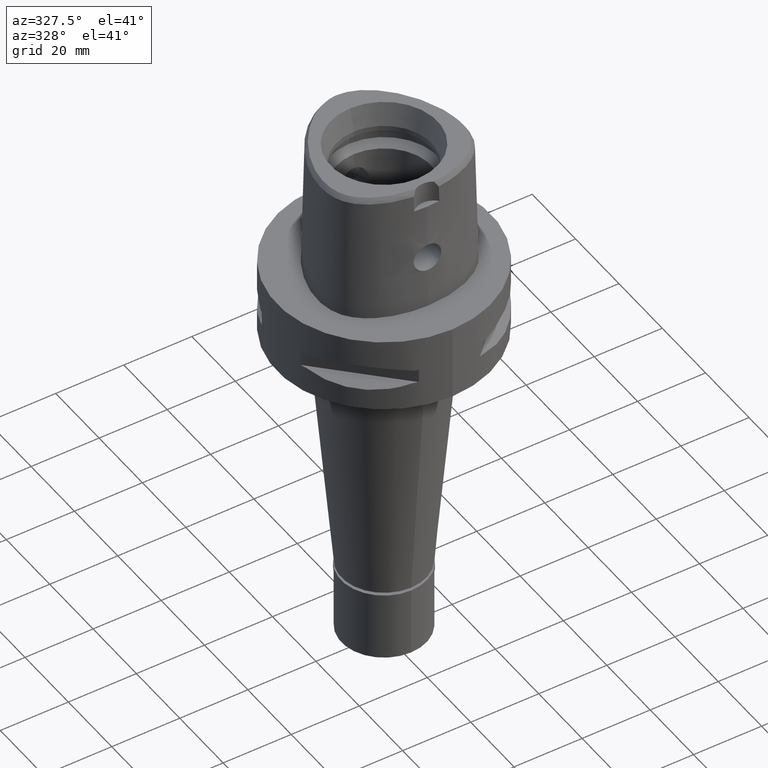
[diagram: clean part render]
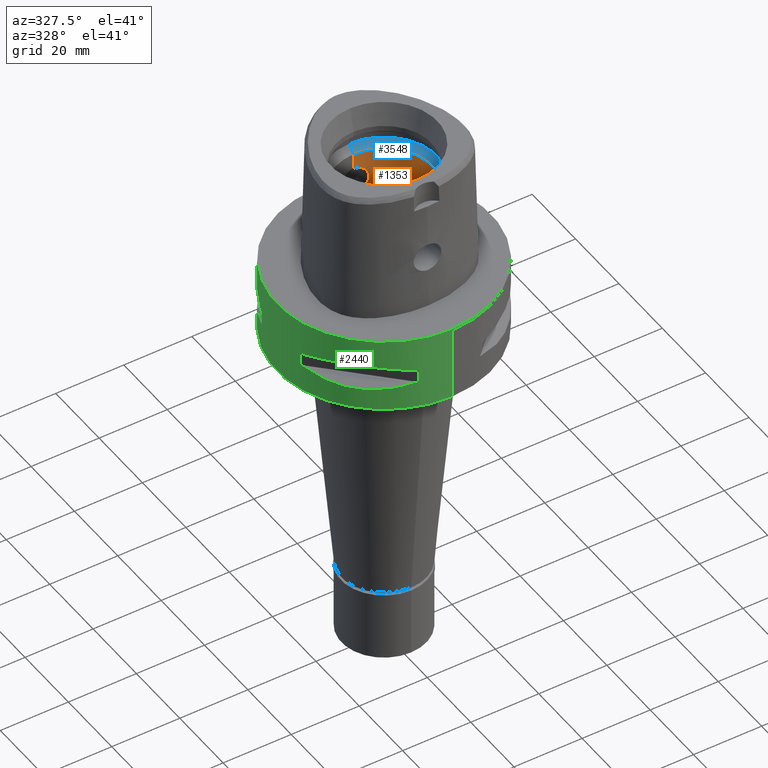
[diagram: same view with three faces highlighted in distinct colors, each labeled with its STEP entity id]
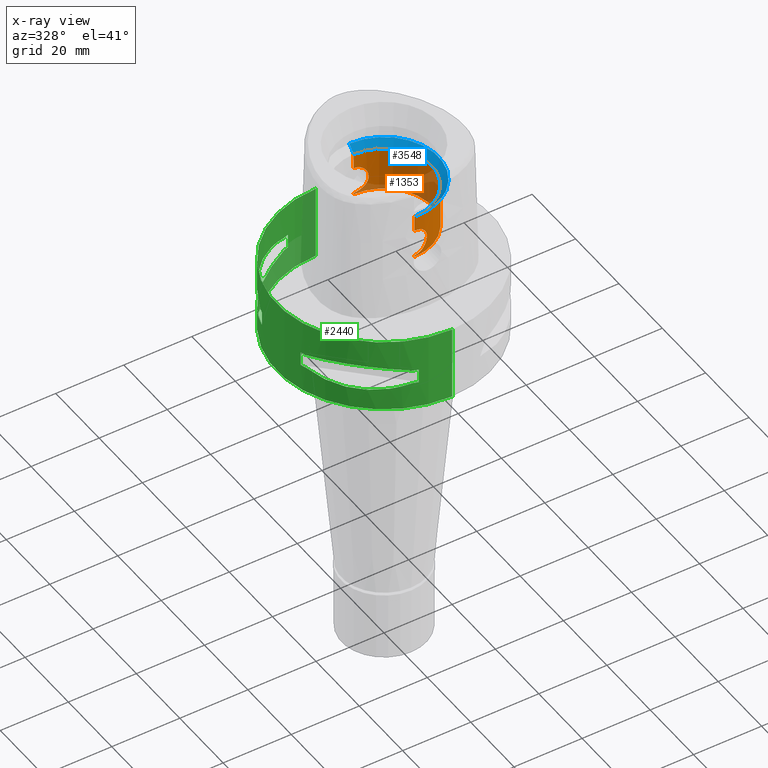
[diagram: x-ray of the same camera — body ghosted, the three highlighted faces saturated]
A machine part, auxiliary view with three faces highlighted in distinct colors.
The next image is the same camera in x-ray (body ghosted, the three faces saturated) — at least one of them is partly hidden behind the body in this view.
Their STEP definitions:

[orange] entity #1353 — the highlighted cylindrical surface (partial cylindrical patch) has radius 14 mm, axis along (0, 0, -1).
#8 = CARTESIAN_POINT ( 'NONE',  ( 3.731947233717674006, 13.49355243647113056, 13.92674594027223378 ) ) ;
#29 = CARTESIAN_POINT ( 'NONE',  ( 3.410721872006920119, 13.57817107780544674, 17.68404181477652770 ) ) ;
#54 = CARTESIAN_POINT ( 'NONE',  ( 3.770295828582672204, 13.48287449147562000, 16.97915267912457082 ) ) ;
#76 = CARTESIAN_POINT ( 'NONE',  ( 3.020660455888391382, 13.67036005593459080, 18.19808468490817432 ) ) ;
#96 = EDGE_CURVE ( 'NONE', #4403, #3761, #3030, .T. ) ;
#129 = VECTOR ( 'NONE', #3969, 1000.000000000000000 ) ;
#149 = CARTESIAN_POINT ( 'NONE',  ( 0.0000000000000000000, -14.00000000000000000, 19.55000000000000071 ) ) ;
#175 = CARTESIAN_POINT ( 'NONE',  ( 3.922079205926539913, -13.43983130148735583, 14.48117699415297821 ) ) ;
#200 = CARTESIAN_POINT ( 'NONE',  ( 3.300146341868730016, -13.60553517925856859, 17.84781835519089199 ) ) ;
#205 = DIRECTION ( 'NONE',  ( 0.0000000000000000000, 0.0000000000000000000, 1.000000000000000000 ) ) ;
#222 = CARTESIAN_POINT ( 'NONE',  ( 0.0000000000000000000, 0.0000000000000000000, 24.19999999999999929 ) ) ;
#230 = CARTESIAN_POINT ( 'NONE',  ( 3.612125191146808856, -13.52615234760308560, 17.33290907846121343 ) ) ;
#253 = CARTESIAN_POINT ( 'NONE',  ( 1.935032715380933022, -13.86568800699301107, 19.05844582699477030 ) ) ;
#265 = CARTESIAN_POINT ( 'NONE',  ( 1.017647129617076596, 13.96323008892529138, 11.57763991488630317 ) ) ;
#277 = CARTESIAN_POINT ( 'NONE',  ( 2.749433056070069270, -13.72738395001101530, 18.47422555712543257 ) ) ;
#290 = VECTOR ( 'NONE', #4975, 1000.000000000000000 ) ;
#343 = CARTESIAN_POINT ( 'NONE',  ( 0.8886602406399118914, 13.97198482965736765, 11.54653314444634127 ) ) ;
#367 = CARTESIAN_POINT ( 'NONE',  ( 4.027172463334768970, 13.40874935841138615, 16.00310739066830834 ) ) ;
#382 = CARTESIAN_POINT ( 'NONE',  ( 3.329855789848241709, -13.59830196918598055, 13.19313464223616705 ) ) ;
#395 = CARTESIAN_POINT ( 'NONE',  ( 4.049894426080578924, 13.40142315477315194, 15.74850829857959944 ) ) ;
#405 = CARTESIAN_POINT ( 'NONE',  ( 2.286401869814578713, -13.81203602588922230, 12.15707754366347437 ) ) ;
#417 = CARTESIAN_POINT ( 'NONE',  ( 3.524199374553697250, 13.54926875960418542, 17.49682897105229884 ) ) ;
#440 = CARTESIAN_POINT ( 'NONE',  ( 2.407026742850356893, 13.79179092516307925, 12.24014823345906855 ) ) ;
#455 = VECTOR ( 'NONE', #205, 1000.000000000000000 ) ;
#468 = CARTESIAN_POINT ( 'NONE',  ( 3.344202712455531135, 13.59470072211582625, 13.21548413973970248 ) ) ;
#484 = CARTESIAN_POINT ( 'NONE',  ( 1.499090398665863022, -13.91942988264788639, 19.26238249073140807 ) ) ;
#491 = CARTESIAN_POINT ( 'NONE',  ( 2.993275682249345149, 13.67636296181817990, 18.22847972535759808 ) ) ;
#508 = CARTESIAN_POINT ( 'NONE',  ( 1.419263858855973170, -13.92782887280988824, 19.29344666030895894 ) ) ;
#567 = CARTESIAN_POINT ( 'NONE',  ( 3.681917144189346125, -13.50730066061704093, 17.18730806971668201 ) ) ;
#572 = CARTESIAN_POINT ( 'NONE',  ( 1.571457089749292102, 13.91140721976953110, 19.23272879698367532 ) ) ;
#584 = EDGE_CURVE ( 'NONE', #2545, #985, #3765, .T. ) ;
#590 = CARTESIAN_POINT ( 'NONE',  ( 2.794219043454203799, -13.71831254960125079, 18.43176999258679416 ) ) ;
#595 = CARTESIAN_POINT ( 'NONE',  ( 2.256421358940177591, 13.81696909000757323, 18.86319363591200116 ) ) ;
#616 = CARTESIAN_POINT ( 'NONE',  ( 3.410743495979883466, -13.57816568318279060, 13.31599196301607613 ) ) ;
#644 = CARTESIAN_POINT ( 'NONE',  ( 3.518056051390934691, -13.55098508630389631, 17.51091968138044663 ) ) ;
#672 = CARTESIAN_POINT ( 'NONE',  ( 3.737887346441685743, -13.49190726130687601, 17.05908841074321813 ) ) ;
#688 = ORIENTED_EDGE ( 'NONE', *, *, #3404, .T. ) ;
#742 = ORIENTED_EDGE ( 'NONE', *, *, #584, .T. ) ;
#750 = CARTESIAN_POINT ( 'NONE',  ( 2.256430671647058350, -13.81696743697042251, 12.13681261213642415 ) ) ;
#758 = CARTESIAN_POINT ( 'NONE',  ( 3.737862436380069209, 13.49191471466330761, 13.94085186771693863 ) ) ;
#769 = CARTESIAN_POINT ( 'NONE',  ( 2.993295809006948360, -13.67635858830081474, 12.77154234738791239 ) ) ;
#781 = CARTESIAN_POINT ( 'NONE',  ( 3.641236061920076317, 13.51834413263972756, 13.72574250707584476 ) ) ;
#796 = CARTESIAN_POINT ( 'NONE',  ( 1.029195579378260561, -13.97152789805618411, 11.54372935797607624 ) ) ;
#810 = CARTESIAN_POINT ( 'NONE',  ( 3.740349717817780917, 13.49122537259350985, 13.94682241178655246 ) ) ;
#812 = LINE ( 'NONE', #854, #3539 ) ;
#830 = CARTESIAN_POINT ( 'NONE',  ( 3.386213530933807281, 13.58429339872313513, 17.72172867397880580 ) ) ;
#851 = CARTESIAN_POINT ( 'NONE',  ( 2.619673022588239863, 13.75271276002085052, 12.41039726434475376 ) ) ;
#852 = LINE ( 'NONE', #2453, #129 ) ;
#854 = CARTESIAN_POINT ( 'NONE',  ( 0.0000000000000000000, 14.00000000000000000, 19.55000000000000071 ) ) ;
#905 = CARTESIAN_POINT ( 'NONE',  ( 1.643402327193238976, -13.90359116571691622, 19.20357680869639339 ) ) ;
#909 = CARTESIAN_POINT ( 'NONE',  ( 0.0000000000000000000, -14.00000000000000000, 11.00000000000000000 ) ) ;
#937 = CARTESIAN_POINT ( 'NONE',  ( 0.4996109249560286014, 13.99999999999999645, 19.54999999999999716 ) ) ;
#957 = CARTESIAN_POINT ( 'NONE',  ( 2.987578035450121572, -13.67819521536447702, 18.24080360132781919 ) ) ;
#966 = CARTESIAN_POINT ( 'NONE',  ( 2.268763823219308584, 13.81494635577724672, 18.85488801677172432 ) ) ;
#985 = VERTEX_POINT ( 'NONE', #909 ) ;
#989 = CARTESIAN_POINT ( 'NONE',  ( 3.750535583141733742, -13.48837563529462713, 13.97158931176320351 ) ) ;
#994 = CARTESIAN_POINT ( 'NONE',  ( 3.098494804711187101, 13.65307097563988314, 18.10922060623350305 ) ) ;
#1010 = CARTESIAN_POINT ( 'NONE',  ( 3.524216152961116677, -13.54926445640474597, 13.50320070279009421 ) ) ;
#1040 = CARTESIAN_POINT ( 'NONE',  ( 3.381275431629196859, -13.58552310375113947, 13.27076317275104600 ) ) ;
#1071 = CARTESIAN_POINT ( 'NONE',  ( 2.225307842479133935, -13.82200032480936791, 18.88386244170206041 ) ) ;
#1085 = CARTESIAN_POINT ( 'NONE',  ( 1.419273682515728385, 13.92782810608996336, 11.70655701251833847 ) ) ;
#1121 = CARTESIAN_POINT ( 'NONE',  ( 1.559056483625618883, -13.91280418779705386, 11.76206681924250752 ) ) ;
#1150 = CARTESIAN_POINT ( 'NONE',  ( 2.356179768647385320, -13.80026442332236236, 12.20580376818401902 ) ) ;
#1162 = CARTESIAN_POINT ( 'NONE',  ( 3.321820542263259846, 13.60022405019305403, 13.18290148945368401 ) ) ;
#1183 = CARTESIAN_POINT ( 'NONE',  ( 2.206585077461908906, 13.82500562468822203, 12.10388135705122892 ) ) ;
#1207 = CARTESIAN_POINT ( 'NONE',  ( 3.557088666496132312, 13.54068383475939719, 17.43752651015343602 ) ) ;
#1210 = B_SPLINE_CURVE_WITH_KNOTS ( 'NONE', 3,
 ( #2729, #2255, #2674, #343, #265, #3447, #3063, #1085, #4245, #3867, #5045, #1503, #3088, #4368, #3234, #2452, #2772, #4408, #1183, #1555, #3990, #1603, #3160, #440, #1582, #851, #4030, #3182, #2036, #3139, #4799, #4777, #2406, #1235, #4707, #2384, #1162, #468, #1252, #2063, #5090, #3212, #2750, #4317, #2825, #781, #3576, #2012, #3968, #8, #758, #810, #3622, #2356, #3939, #4726, #395, #367, #2845, #4341, #1964, #1649, #3554, #54, #2799, #4008, #1990, #5117, #4751, #1207, #417, #4389, #3596, #29, #1628, #830, #2424, #2564, #3313, #4517, #2587, #994, #76, #491, #1277, #4489, #3255, #2949, #2115, #2167, #4159, #2926, #4930, #966, #3363, #595, #4138, #2483, #1701, #1359, #1310, #2090, #4056, #4902, #572, #3648, #1673, #937, #3752 ),
 .UNSPECIFIED., .F., .F.,
 ( 4, 2, 2, 1, 1, 2, 2, 2, 2, 1, 1, 1, 2, 2, 2, 2, 1, 2, 2, 2, 2, 1, 1, 1, 2, 2, 2, 2, 1, 1, 2, 2, 2, 2, 2, 2, 1, 1, 1, 2, 2, 2, 2, 1, 1, 1, 2, 2, 2, 2, 2, 2, 2, 2, 1, 1, 1, 2, 2, 2, 2, 1, 2, 2, 4 ),
 ( 0.0000000000000000000, 0.06250000000002796374, 0.09375000000004200806, 0.1093750000000490857, 0.1171875000000525829, 0.1210937500000543177, 0.1250000000000560385, 0.1562500000000701383, 0.1718750000000773548, 0.1796875000000809630, 0.1835937500000826839, 0.1855468750000834610, 0.1865234375000837386, 0.1875000000000840161, 0.2187500000000996425, 0.2343750000001074418, 0.2421875000001113554, 0.2460937500001133815, 0.2500000000001154077, 0.2812500000001315059, 0.2968750000001393885, 0.3046875000001431633, 0.3085937500001449951, 0.3105468750001457168, 0.3115234375001458278, 0.3125000000001459388, 0.3437500000001469380, 0.3593750000001472156, 0.3671875000001475486, 0.3710937500001474931, 0.3730468750001477152, 0.3750000000001478817, 0.4375000000001576517, 0.5000000000001674216, 0.5625000000001771916, 0.5937500000001820766, 0.6093750000001841860, 0.6171875000001851852, 0.6210937500001852962, 0.6230468750001854072, 0.6250000000001855183, 0.6562500000001864064, 0.6718750000001868505, 0.6796875000001872946, 0.6835937500001872946, 0.6855468750001872946, 0.6865234375001869616, 0.6875000000001866285, 0.7187500000001761924, 0.7343750000001709743, 0.7421875000001680878, 0.7500000000001652012, 0.7812500000001552092, 0.7968750000001503242, 0.8046875000001475486, 0.8085937500001462164, 0.8105468750001455502, 0.8115234375001447731, 0.8125000000001441069, 0.8437500000001201261, 0.8593750000001081357, 0.8671875000001020295, 0.8710937500000988098, 0.8750000000000954792, 1.000000000000000000 ),
 .UNSPECIFIED. ) ;
#1235 = CARTESIAN_POINT ( 'NONE',  ( 3.217025597028648320, 13.62560769355123647, 13.03875506194515488 ) ) ;
#1252 = CARTESIAN_POINT ( 'NONE',  ( 3.354680329649776471, 13.59210945294472062, 13.23093247323635957 ) ) ;
#1268 = CARTESIAN_POINT ( 'NONE',  ( 1.017639181934914649, -13.96323047955135976, 19.42236212083248503 ) ) ;
#1277 = CARTESIAN_POINT ( 'NONE',  ( 2.935444872016017115, 13.68884853182273176, 18.29060286049227102 ) ) ;
#1306 = ORIENTED_EDGE ( 'NONE', *, *, #96, .F. ) ;
#1310 = CARTESIAN_POINT ( 'NONE',  ( 1.773859858346373830, 13.88717310935093607, 19.14143527713201465 ) ) ;
#1353 = ADVANCED_FACE ( 'NONE', ( #2955 ), #4524, .F. ) ;
#1359 = CARTESIAN_POINT ( 'NONE',  ( 1.832682128999251647, 13.87954668814696291, 19.11223895305699472 ) ) ;
#1381 = CARTESIAN_POINT ( 'NONE',  ( 4.049890164045743646, -13.40142381087270174, 15.25144457808762510 ) ) ;
#1408 = CARTESIAN_POINT ( 'NONE',  ( 3.953314660134230607, -13.43069195179432818, 14.61062672899636716 ) ) ;
#1432 = CARTESIAN_POINT ( 'NONE',  ( 3.770305607765263467, -13.48287202864421452, 14.02087226160112010 ) ) ;
#1444 = CARTESIAN_POINT ( 'NONE',  ( 0.0000000000000000000, 0.0000000000000000000, 39.89999999999999858 ) ) ;
#1460 = CARTESIAN_POINT ( 'NONE',  ( 4.027223470529567528, -13.40876944168271834, 16.00391502723211801 ) ) ;
#1490 = CARTESIAN_POINT ( 'NONE',  ( 2.474909159131547742, -13.77946166279600604, 12.29346908443046082 ) ) ;
#1503 = CARTESIAN_POINT ( 'NONE',  ( 1.643405570641728985, 13.90359095054735050, 11.79642487334085565 ) ) ;
#1555 = CARTESIAN_POINT ( 'NONE',  ( 2.217806395127109198, 13.82320634839995321, 12.11121632282324612 ) ) ;
#1578 = ORIENTED_EDGE ( 'NONE', *, *, #3333, .T. ) ;
#1582 = CARTESIAN_POINT ( 'NONE',  ( 2.564495781464740443, 13.76306347787880036, 12.36466282403251604 ) ) ;
#1603 = CARTESIAN_POINT ( 'NONE',  ( 2.230267356657809508, 13.82120012601140502, 12.11940589182981221 ) ) ;
#1628 = CARTESIAN_POINT ( 'NONE',  ( 3.393626394359816167, 13.58244558944035951, 17.71041667749945248 ) ) ;
#1649 = CARTESIAN_POINT ( 'NONE',  ( 3.833372613786533378, 13.46518805228022408, 16.80994934950047082 ) ) ;
#1673 = CARTESIAN_POINT ( 'NONE',  ( 1.029184106435327983, 13.97152837429127992, 19.45627297034519998 ) ) ;
#1688 = AXIS2_PLACEMENT_3D ( 'NONE', #2321, #5024, #4733 ) ;
#1701 = CARTESIAN_POINT ( 'NONE',  ( 2.010501717871479688, 13.85534156540951223, 19.01828921525475735 ) ) ;
#1768 = CARTESIAN_POINT ( 'NONE',  ( 1.994209348898474676, -13.85732070567407170, 19.02567586467320737 ) ) ;
#1793 = CARTESIAN_POINT ( 'NONE',  ( 2.312907190676523506, -13.80784060208447528, 18.82598581438754337 ) ) ;
#1822 = CARTESIAN_POINT ( 'NONE',  ( 3.092415008935291088, -13.65466569416509302, 18.11866219970372427 ) ) ;
#1835 = CARTESIAN_POINT ( 'NONE',  ( 0.0000000000000000000, 14.00000000000000000, 11.00000000000000000 ) ) ;
#1847 = CARTESIAN_POINT ( 'NONE',  ( 3.321853759952848595, -13.60021613419694297, 17.81705094759875152 ) ) ;
#1871 = CARTESIAN_POINT ( 'NONE',  ( 2.180430719104277770, -13.82916524274332204, 18.91303019137124508 ) ) ;
#1883 = ORIENTED_EDGE ( 'NONE', *, *, #4796, .F. ) ;
#1901 = CARTESIAN_POINT ( 'NONE',  ( 1.686553841137762522, -13.89794860813394628, 11.81773595103047825 ) ) ;
#1949 = CARTESIAN_POINT ( 'NONE',  ( 1.571471244899176778, -13.91140584751626186, 11.76727716384500333 ) ) ;
#1964 = CARTESIAN_POINT ( 'NONE',  ( 3.864694685454566958, 13.45627952657928006, 16.71292491325205276 ) ) ;
#1978 = CARTESIAN_POINT ( 'NONE',  ( 2.425356293392302298, -13.78827839653583354, 12.25602180745960545 ) ) ;
#1980 = CARTESIAN_POINT ( 'NONE',  ( 0.0000000000000000000, 14.00000000000000000, 24.19999999999999929 ) ) ;
#1990 = CARTESIAN_POINT ( 'NONE',  ( 3.750524584720605237, 13.48837842770623574, 17.02843767659302543 ) ) ;
#2001 = CARTESIAN_POINT ( 'NONE',  ( 2.935464796398259413, -13.68884427349787636, 12.70941809089527830 ) ) ;
#2012 = CARTESIAN_POINT ( 'NONE',  ( 3.701448599088179581, 13.50196410078681808, 13.85577559937554604 ) ) ;
#2028 = CARTESIAN_POINT ( 'NONE',  ( 1.307177758832643200, -13.93893633211208005, 19.33430355922904198 ) ) ;
#2036 = CARTESIAN_POINT ( 'NONE',  ( 2.794188265560816120, 13.71831884115572109, 12.56820068589659023 ) ) ;
#2063 = CARTESIAN_POINT ( 'NONE',  ( 3.359020109953346100, 13.59103542220014127, 13.23737089544341572 ) ) ;
#2090 = CARTESIAN_POINT ( 'NONE',  ( 1.686542341558419755, 13.89794981159410803, 19.18226932051135591 ) ) ;
#2109 = LINE ( 'NONE', #3021, #455 ) ;
#2115 = CARTESIAN_POINT ( 'NONE',  ( 2.474897426778941423, 13.77946391585664188, 18.70653994157297717 ) ) ;
#2161 = CARTESIAN_POINT ( 'NONE',  ( 3.723011875671556670, -13.49602288719285070, 17.09439534801255434 ) ) ;
#2167 = CARTESIAN_POINT ( 'NONE',  ( 2.425345328720491356, 13.78828047725936656, 18.74398637552772584 ) ) ;
#2184 = CARTESIAN_POINT ( 'NONE',  ( 4.050109039351831086, -13.40137442886396535, 15.74496307468086265 ) ) ;
#2214 = CARTESIAN_POINT ( 'NONE',  ( 2.407040127179533417, -13.79178862306922326, 18.75984205951462869 ) ) ;
#2242 = CARTESIAN_POINT ( 'NONE',  ( 3.359058616904238459, -13.59102609449451116, 17.76257193799834155 ) ) ;
#2255 = CARTESIAN_POINT ( 'NONE',  ( 0.2481266265058150455, 14.00000000000000000, 11.44999999999999929 ) ) ;
#2267 = CARTESIAN_POINT ( 'NONE',  ( 2.824278146738441464, -13.71216806335095839, 18.40282419414096537 ) ) ;
#2295 = CARTESIAN_POINT ( 'NONE',  ( 0.4996170307295716984, -14.00000000000000355, 11.45000000000000107 ) ) ;
#2321 = CARTESIAN_POINT ( 'NONE',  ( 0.0000000000000000000, 0.0000000000000000000, 11.00000000000000000 ) ) ;
#2346 = CARTESIAN_POINT ( 'NONE',  ( 1.773869829159604228, -13.88717198022183119, 11.85856959825438750 ) ) ;
#2356 = CARTESIAN_POINT ( 'NONE',  ( 3.927462924607744377, 13.43840419036686562, 14.47652859058932151 ) ) ;
#2357 = CARTESIAN_POINT ( 'NONE',  ( 0.0000000000000000000, 14.00000000000000000, 19.55000000000000071 ) ) ;
#2370 = CARTESIAN_POINT ( 'NONE',  ( 2.322876849046348280, -13.80594766825983477, 12.18218411294631487 ) ) ;
#2384 = CARTESIAN_POINT ( 'NONE',  ( 3.300115214101455141, 13.60554254237637295, 13.15213791996509585 ) ) ;
#2396 = CARTESIAN_POINT ( 'NONE',  ( 2.749429150023159796, -13.72794355115766329, 12.52109900925337094 ) ) ;
#2406 = CARTESIAN_POINT ( 'NONE',  ( 3.092390699437096213, 13.65467114194158071, 12.88130927557538463 ) ) ;
#2424 = CARTESIAN_POINT ( 'NONE',  ( 3.381252386281981437, 13.58552879951720449, 17.72927178202238352 ) ) ;
#2452 = CARTESIAN_POINT ( 'NONE',  ( 2.083402352831571935, 13.84411649684632017, 12.02679904739869876 ) ) ;
#2453 = CARTESIAN_POINT ( 'NONE',  ( 0.0000000000000000000, 14.00000000000000000, 11.00000000000000000 ) ) ;
#2483 = CARTESIAN_POINT ( 'NONE',  ( 2.130873031707559484, 13.83743700475047866, 18.94716637657095504 ) ) ;
#2502 = CARTESIAN_POINT ( 'NONE',  ( 1.758914213848991492, -13.88947879499290750, 19.15051695535359499 ) ) ;
#2545 = VERTEX_POINT ( 'NONE', #1835 ) ;
#2556 = CARTESIAN_POINT ( 'NONE',  ( 3.253150413822480047, -13.61695205280139120, 17.91296083928640215 ) ) ;
#2564 = CARTESIAN_POINT ( 'NONE',  ( 3.377713256201304581, 13.58640893255201476, 17.73462749918550330 ) ) ;
#2582 = CARTESIAN_POINT ( 'NONE',  ( 3.702139074826315213, -13.50182043943946120, 13.85345734740507950 ) ) ;
#2587 = CARTESIAN_POINT ( 'NONE',  ( 3.144628171822032137, 13.64250443858482598, 18.05308396219102818 ) ) ;
#2605 = CARTESIAN_POINT ( 'NONE',  ( 3.471407568611402983, -13.56281871368658543, 13.41360808472617805 ) ) ;
#2636 = CARTESIAN_POINT ( 'NONE',  ( 2.206604282644675674, -13.82500263683901487, 18.89610616578819347 ) ) ;
#2662 = CARTESIAN_POINT ( 'NONE',  ( 2.705656092661654188, -13.73601936352376995, 18.51386516676384986 ) ) ;
#2674 = CARTESIAN_POINT ( 'NONE',  ( 0.5031375785590220806, 13.99299620741434325, 11.47286437004364679 ) ) ;
#2684 = CARTESIAN_POINT ( 'NONE',  ( 3.144649004257418667, -13.64249969685167940, 12.94694166653767198 ) ) ;
#2713 = EDGE_CURVE ( 'NONE', #3507, #4791, #1210, .T. ) ;
#2729 = CARTESIAN_POINT ( 'NONE',  ( 0.0000000000000000000, 14.00000000000000000, 11.44999999999999929 ) ) ;
#2741 = CARTESIAN_POINT ( 'NONE',  ( 2.903830259238845191, -13.69557610161474948, 12.67649343709667953 ) ) ;
#2750 = CARTESIAN_POINT ( 'NONE',  ( 3.446439376921886399, 13.56939223703913022, 13.36783492901220072 ) ) ;
#2768 = CARTESIAN_POINT ( 'NONE',  ( 0.0000000000000000000, -14.00000000000000000, 24.19999999999999929 ) ) ;
#2772 = CARTESIAN_POINT ( 'NONE',  ( 2.128115661606785114, 13.83734960243819678, 12.05387220707678431 ) ) ;
#2799 = CARTESIAN_POINT ( 'NONE',  ( 3.760688074396015157, 13.48555087701915056, 17.00326317844047708 ) ) ;
#2825 = CARTESIAN_POINT ( 'NONE',  ( 3.612092316939220282, 13.52616139821540564, 13.66702611669179213 ) ) ;
#2845 = CARTESIAN_POINT ( 'NONE',  ( 3.953315574837680035, 13.43069190713384131, 16.38937041762279989 ) ) ;
#2863 = CARTESIAN_POINT ( 'NONE',  ( 1.210730804435200314, -13.94747211364480322, 19.36537636551466690 ) ) ;
#2926 = CARTESIAN_POINT ( 'NONE',  ( 2.322867096538177023, 13.80594945631067816, 18.81782271138472495 ) ) ;
#2941 = CARTESIAN_POINT ( 'NONE',  ( 2.230287417955466367, -13.82119696819923327, 18.88058087294110976 ) ) ;
#2949 = CARTESIAN_POINT ( 'NONE',  ( 2.632421441996107614, 13.75053619267145599, 18.58073368398477854 ) ) ;
#2955 = FACE_OUTER_BOUND ( 'NONE', #3972, .T. ) ;
#2958 = EDGE_CURVE ( 'NONE', #4791, #3505, #812, .T. ) ;
#2971 = CARTESIAN_POINT ( 'NONE',  ( 3.792123985356183447, -13.47677720437842019, 14.07719458704158022 ) ) ;
#2996 = CARTESIAN_POINT ( 'NONE',  ( 3.833378784114828797, -13.46518651549687284, 14.19006897786093369 ) ) ;
#3017 = CARTESIAN_POINT ( 'NONE',  ( 0.0000000000000000000, -14.00000000000000000, 11.44999999999999929 ) ) ;
#3018 = CARTESIAN_POINT ( 'NONE',  ( 3.393648836081902154, -13.58244002077893064, 13.28961777950231671 ) ) ;
#3021 = CARTESIAN_POINT ( 'NONE',  ( 0.0000000000000000000, -14.00000000000000000, 11.00000000000000000 ) ) ;
#3030 = B_SPLINE_CURVE_WITH_KNOTS ( 'NONE', 3,
 ( #3248, #3694, #4457, #4813, #1268, #2863, #2028, #508, #4427, #484, #3277, #905, #2502, #253, #1768, #4921, #4612, #1871, #2636, #4949, #1071, #2941, #1793, #2214, #4510, #3799, #2662, #277, #590, #2267, #4153, #957, #1822, #3826, #2556, #200, #1847, #3433, #4974, #2242, #4209, #4132, #4232, #644, #230, #4998, #567, #3383, #2161, #3850, #672, #3463, #5032, #3746, #1460, #2184, #1381, #3408, #1408, #175, #3355, #2996, #2971, #1432, #3050, #4538, #989, #2582, #4559, #3771, #1010, #2605, #4179, #616, #3018, #4584, #1040, #4329, #382, #4718, #2684, #3880, #4692, #769, #2001, #2741, #2396, #3172, #1490, #1978, #1150, #2370, #405, #3566, #3980, #750, #4307, #3075, #3953, #3587, #2346, #1901, #5055, #4285, #1949, #1121, #796, #2295, #4636 ),
 .UNSPECIFIED., .F., .F.,
 ( 4, 2, 2, 1, 1, 2, 2, 2, 2, 1, 1, 1, 2, 2, 2, 2, 1, 2, 2, 2, 2, 1, 1, 1, 2, 2, 2, 2, 1, 1, 2, 2, 2, 2, 2, 2, 1, 1, 1, 2, 2, 2, 2, 1, 1, 1, 2, 2, 2, 2, 2, 2, 2, 2, 1, 1, 1, 2, 2, 2, 2, 1, 2, 2, 4 ),
 ( 0.0000000000000000000, 0.06249999999994695909, 0.09374999999992046640, 0.1093749999999070882, 0.1171874999999003714, 0.1210937499998970546, 0.1249999999998937378, 0.1562499999998678002, 0.1718749999998550326, 0.1796874999998488431, 0.1835937499998455125, 0.1855468749998440137, 0.1865234374998430977, 0.1874999999998421818, 0.2187499999998184230, 0.2343749999998064881, 0.2421874999998005484, 0.2460937499997977451, 0.2499999999997949973, 0.2812499999997747357, 0.2968749999997642441, 0.3046874999997590816, 0.3085937499997564726, 0.3105468749997550848, 0.3115234374997549183, 0.3124999999997547517, 0.3437499999997624123, 0.3593749999997665201, 0.3671874999997685185, 0.3710937499997691846, 0.3730468749997694622, 0.3749999999997697397, 0.4374999999997811195, 0.4999999999997926103, 0.5624999999998034905, 0.5937499999998089306, 0.6093749999998114841, 0.6171874999998129274, 0.6210937499998135936, 0.6230468749998141487, 0.6249999999998147038, 0.6562499999998239186, 0.6718749999998283595, 0.6796874999998306910, 0.6835937499998319122, 0.6855468749998325784, 0.6865234374998329114, 0.6874999999998333555, 0.7187499999998478994, 0.7343749999998552269, 0.7421874999998590017, 0.7499999999998626654, 0.7812499999998773204, 0.7968749999998847589, 0.8046874999998885336, 0.8085937499998905320, 0.8105468749998913092, 0.8115234374998919753, 0.8124999999998925304, 0.8437499999999107381, 0.8593749999999200639, 0.8671874999999246159, 0.8710937499999267253, 0.8749999999999288347, 1.000000000000000000 ),
 .UNSPECIFIED. ) ;
#3049 = AXIS2_PLACEMENT_3D ( 'NONE', #222, #3818, #4603 ) ;
#3050 = CARTESIAN_POINT ( 'NONE',  ( 3.760698389515004347, -13.48554827043490789, 13.99676262888475797 ) ) ;
#3063 = CARTESIAN_POINT ( 'NONE',  ( 1.307187133395111944, 13.93893568339380096, 11.66569962606411792 ) ) ;
#3075 = CARTESIAN_POINT ( 'NONE',  ( 2.130881178330037429, -13.83743566614538878, 12.05283858994643609 ) ) ;
#3088 = CARTESIAN_POINT ( 'NONE',  ( 1.758911448705636316, 13.88947925417483908, 11.84948192330543471 ) ) ;
#3111 = DIRECTION ( 'NONE',  ( 0.0000000000000000000, 0.0000000000000000000, -1.000000000000000000 ) ) ;
#3139 = CARTESIAN_POINT ( 'NONE',  ( 2.824245245275939453, 13.71217485460608287, 12.59714380719415416 ) ) ;
#3160 = CARTESIAN_POINT ( 'NONE',  ( 2.312892875906935153, 13.80784294829982173, 12.17400404903530742 ) ) ;
#3172 = CARTESIAN_POINT ( 'NONE',  ( 2.632435958395578091, -13.75053331393012712, 12.41927859767038989 ) ) ;
#3182 = CARTESIAN_POINT ( 'NONE',  ( 2.749405349808391463, 13.72738952683707581, 12.52574890507688998 ) ) ;
#3212 = CARTESIAN_POINT ( 'NONE',  ( 3.362135645922113447, 13.59026426608047622, 13.24199978629571994 ) ) ;
#3234 = CARTESIAN_POINT ( 'NONE',  ( 1.994196793542153179, 13.85732250604735150, 11.97431708283842333 ) ) ;
#3248 = CARTESIAN_POINT ( 'NONE',  ( 0.0000000000000000000, -14.00000000000000000, 19.55000000000000071 ) ) ;
#3255 = CARTESIAN_POINT ( 'NONE',  ( 2.749412119689650158, 13.72794699191206114, 18.47891641111060324 ) ) ;
#3277 = CARTESIAN_POINT ( 'NONE',  ( 1.516899316913374207, -13.91750090884602642, 19.25522928306563486 ) ) ;
#3313 = CARTESIAN_POINT ( 'NONE',  ( 3.329833398821768764, 13.59830740158224849, 17.80689757028679665 ) ) ;
#3333 = EDGE_CURVE ( 'NONE', #985, #3761, #2109, .T. ) ;
#3355 = CARTESIAN_POINT ( 'NONE',  ( 3.864698997087948396, -13.45627842728415935, 14.28708901167128609 ) ) ;
#3363 = CARTESIAN_POINT ( 'NONE',  ( 2.261340657284464317, 13.81616386825135123, 18.85988797632192870 ) ) ;
#3383 = CARTESIAN_POINT ( 'NONE',  ( 3.701476196218872250, -13.50195603622213092, 17.14416223936576600 ) ) ;
#3395 = DIRECTION ( 'NONE',  ( 0.0000000000000000000, -1.000000000000000000, 0.0000000000000000000 ) ) ;
#3404 = EDGE_CURVE ( 'NONE', #4403, #4077, #4951, .T. ) ;
#3408 = CARTESIAN_POINT ( 'NONE',  ( 4.027167981715002121, -13.40875010522974264, 14.99686531039766102 ) ) ;
#3409 = CARTESIAN_POINT ( 'NONE',  ( 0.0000000000000000000, -14.00000000000000000, 19.55000000000000071 ) ) ;
#3433 = CARTESIAN_POINT ( 'NONE',  ( 3.344238891842337136, -13.59469201711720565, 17.78446291338760687 ) ) ;
#3447 = CARTESIAN_POINT ( 'NONE',  ( 1.210739730851152052, 13.94747155560756191, 11.63462642380244993 ) ) ;
#3463 = CARTESIAN_POINT ( 'NONE',  ( 3.740374405824263171, -13.49121797331939376, 17.05311813184026093 ) ) ;
#3497 = ORIENTED_EDGE ( 'NONE', *, *, #4110, .T. ) ;
#3505 = VERTEX_POINT ( 'NONE', #1980 ) ;
#3507 = VERTEX_POINT ( 'NONE', #3664 ) ;
#3539 = VECTOR ( 'NONE', #4058, 1000.000000000000000 ) ;
#3543 = CIRCLE ( 'NONE', #3049, 14.00000000000000000 ) ;
#3554 = CARTESIAN_POINT ( 'NONE',  ( 3.792115437656363497, 13.47677934324679150, 16.92282825340859276 ) ) ;
#3566 = CARTESIAN_POINT ( 'NONE',  ( 2.268773195283242394, -13.81494468100451023, 12.14511832103185718 ) ) ;
#3576 = CARTESIAN_POINT ( 'NONE',  ( 3.681888265734950316, 13.50730898610041386, 13.81262890089362294 ) ) ;
#3587 = CARTESIAN_POINT ( 'NONE',  ( 1.832691376603167388, -13.87954557478522410, 11.88776574647553552 ) ) ;
#3596 = CARTESIAN_POINT ( 'NONE',  ( 3.444114222125594704, 13.56977022796854726, 17.63138026165065142 ) ) ;
#3622 = CARTESIAN_POINT ( 'NONE',  ( 3.850558670336118539, 13.46064117905781643, 14.21385490515232419 ) ) ;
#3648 = CARTESIAN_POINT ( 'NONE',  ( 1.559041427490637011, 13.91280564626705463, 19.23793945981470443 ) ) ;
#3664 = CARTESIAN_POINT ( 'NONE',  ( 0.0000000000000000000, 14.00000000000000000, 11.44999999999999929 ) ) ;
#3692 = AXIS2_PLACEMENT_3D ( 'NONE', #1444, #3111, #3395 ) ;
#3694 = CARTESIAN_POINT ( 'NONE',  ( 0.2481241772469208740, -14.00000000000000000, 19.55000000000000071 ) ) ;
#3746 = CARTESIAN_POINT ( 'NONE',  ( 3.927475894227258735, -13.43840014691404683, 16.52342187611872504 ) ) ;
#3752 = CARTESIAN_POINT ( 'NONE',  ( 0.0000000000000000000, 14.00000000000000000, 19.55000000000000071 ) ) ;
#3761 = VERTEX_POINT ( 'NONE', #3017 ) ;
#3765 = CIRCLE ( 'NONE', #1688, 14.00000000000000000 ) ;
#3771 = CARTESIAN_POINT ( 'NONE',  ( 3.557104272937164247, -13.54067981902765361, 13.56250217907580513 ) ) ;
#3799 = CARTESIAN_POINT ( 'NONE',  ( 2.619693227463823160, -13.75270887468661307, 18.58958572218649508 ) ) ;
#3818 = DIRECTION ( 'NONE',  ( 0.0000000000000000000, 0.0000000000000000000, 1.000000000000000000 ) ) ;
#3826 = CARTESIAN_POINT ( 'NONE',  ( 3.217051634182986231, -13.62560167972273106, 17.96121095376075516 ) ) ;
#3850 = CARTESIAN_POINT ( 'NONE',  ( 3.731972597726727070, -13.49354487605845776, 17.07319389047233926 ) ) ;
#3867 = CARTESIAN_POINT ( 'NONE',  ( 1.499100513058770012, 13.91942902670014170, 11.73762153891944848 ) ) ;
#3880 = CARTESIAN_POINT ( 'NONE',  ( 3.098515381885727393, -13.65306636117298389, 12.89080379854775238 ) ) ;
#3939 = CARTESIAN_POINT ( 'NONE',  ( 4.027216825684716284, 13.40877103518742253, 14.99603235324932449 ) ) ;
#3953 = CARTESIAN_POINT ( 'NONE',  ( 2.010509632062541296, -13.85534039798980288, 11.98171533894314855 ) ) ;
#3965 = ORIENTED_EDGE ( 'NONE', *, *, #2958, .F. ) ;
#3968 = CARTESIAN_POINT ( 'NONE',  ( 3.722985834057065180, 13.49603060517735820, 13.90554383507138780 ) ) ;
#3969 = DIRECTION ( 'NONE',  ( 0.0000000000000000000, 0.0000000000000000000, 1.000000000000000000 ) ) ;
#3972 = EDGE_LOOP ( 'NONE', ( #1883, #742, #1578, #1306, #688, #3497, #3965, #4084 ) ) ;
#3980 = CARTESIAN_POINT ( 'NONE',  ( 2.261349992708959533, -13.81616220668975537, 12.14011830679867110 ) ) ;
#3990 = CARTESIAN_POINT ( 'NONE',  ( 2.225288147335050759, 13.82200341650345088, 12.11612460656476919 ) ) ;
#4008 = CARTESIAN_POINT ( 'NONE',  ( 3.754225769602181906, 13.48734939608367256, 17.01933006532954806 ) ) ;
#4030 = CARTESIAN_POINT ( 'NONE',  ( 2.705631081591456599, 13.73602433008912982, 12.48611241040952713 ) ) ;
#4056 = CARTESIAN_POINT ( 'NONE',  ( 1.643112089915769847, 13.90317243032500372, 19.20194634167605940 ) ) ;
#4058 = DIRECTION ( 'NONE',  ( 0.0000000000000000000, 0.0000000000000000000, 1.000000000000000000 ) ) ;
#4077 = VERTEX_POINT ( 'NONE', #2768 ) ;
#4084 = ORIENTED_EDGE ( 'NONE', *, *, #2713, .F. ) ;
#4110 = EDGE_CURVE ( 'NONE', #4077, #3505, #3543, .T. ) ;
#4132 = CARTESIAN_POINT ( 'NONE',  ( 3.362175151429778186, -13.59025468045918572, 17.75794138952741008 ) ) ;
#4138 = CARTESIAN_POINT ( 'NONE',  ( 2.255317399662373212, 13.81714987027322117, 18.86393579140843002 ) ) ;
#4153 = CARTESIAN_POINT ( 'NONE',  ( 2.838009928923838299, -13.70933862723131291, 18.38942009772304687 ) ) ;
#4159 = CARTESIAN_POINT ( 'NONE',  ( 2.356169660972866620, 13.80026629987498232, 18.79420345770414613 ) ) ;
#4179 = CARTESIAN_POINT ( 'NONE',  ( 3.444134305109939564, -13.56976516763156049, 13.36865222198565561 ) ) ;
#4209 = CARTESIAN_POINT ( 'NONE',  ( 3.361919059612541449, -13.59031805818456284, 17.75831946434291808 ) ) ;
#4232 = CARTESIAN_POINT ( 'NONE',  ( 3.446478207116122849, -13.56938250736906681, 17.63210248794235824 ) ) ;
#4245 = CARTESIAN_POINT ( 'NONE',  ( 1.467188112032900227, 13.92282148873382219, 11.72506250693269791 ) ) ;
#4285 = CARTESIAN_POINT ( 'NONE',  ( 1.600078814842328390, -13.90814512833361505, 11.77945038584475412 ) ) ;
#4307 = CARTESIAN_POINT ( 'NONE',  ( 2.255326728030059957, -13.81714821576314733, 12.13607046265255107 ) ) ;
#4317 = CARTESIAN_POINT ( 'NONE',  ( 3.518019159162037557, 13.55099469859089290, 13.48901570177833698 ) ) ;
#4329 = CARTESIAN_POINT ( 'NONE',  ( 3.377736576017047909, -13.58640317541383702, 13.26540774977728709 ) ) ;
#4341 = CARTESIAN_POINT ( 'NONE',  ( 3.922078288989684580, 13.43983163058550900, 16.51882742547931926 ) ) ;
#4368 = CARTESIAN_POINT ( 'NONE',  ( 1.935022422310702206, 13.86568947269442020, 11.94154862990651722 ) ) ;
#4389 = CARTESIAN_POINT ( 'NONE',  ( 3.471388650748093330, 13.56282351113626916, 17.58642340579924834 ) ) ;
#4403 = VERTEX_POINT ( 'NONE', #149 ) ;
#4408 = CARTESIAN_POINT ( 'NONE',  ( 2.180412222388873555, 13.82916808513208906, 12.08695799700654483 ) ) ;
#4427 = CARTESIAN_POINT ( 'NONE',  ( 1.467178111807090790, -13.92282230864165449, 19.27494137943474684 ) ) ;
#4457 = CARTESIAN_POINT ( 'NONE',  ( 0.5031329880713201197, -13.99299628181930544, 19.52713608389184330 ) ) ;
#4489 = CARTESIAN_POINT ( 'NONE',  ( 2.903809840621022431, 13.69558042600117176, 18.32352754259278171 ) ) ;
#4510 = CARTESIAN_POINT ( 'NONE',  ( 2.564513564700615866, -13.76306012764494291, 18.63532267608531612 ) ) ;
#4517 = CARTESIAN_POINT ( 'NONE',  ( 3.267839163493140742, 13.61368337684388408, 17.89612675574468881 ) ) ;
#4524 = CYLINDRICAL_SURFACE ( 'NONE', #3692, 14.00000000000000000 ) ;
#4538 = CARTESIAN_POINT ( 'NONE',  ( 3.754236443711939319, -13.48734669257275520, 13.98069631227876997 ) ) ;
#4559 = CARTESIAN_POINT ( 'NONE',  ( 3.649300473937637346, -13.51628050932879610, 13.73856294195509165 ) ) ;
#4584 = CARTESIAN_POINT ( 'NONE',  ( 3.386236333441687396, -13.58428775399595700, 13.27830608080645547 ) ) ;
#4603 = DIRECTION ( 'NONE',  ( 0.0000000000000000000, -1.000000000000000000, 0.0000000000000000000 ) ) ;
#4612 = CARTESIAN_POINT ( 'NONE',  ( 2.128132661679641657, -13.83734705124413544, 18.94611731522211073 ) ) ;
#4636 = CARTESIAN_POINT ( 'NONE',  ( 0.0000000000000000000, -14.00000000000000000, 11.44999999999999929 ) ) ;
#4692 = CARTESIAN_POINT ( 'NONE',  ( 3.020680690208538355, -13.67035562331175491, 12.80193796120899208 ) ) ;
#4707 = CARTESIAN_POINT ( 'NONE',  ( 3.253122839228511864, 13.61695847470872245, 13.08700209578858953 ) ) ;
#4718 = CARTESIAN_POINT ( 'NONE',  ( 3.267860856929353019, -13.61367823520136078, 13.10390269899082583 ) ) ;
#4726 = CARTESIAN_POINT ( 'NONE',  ( 4.050104837866462582, 13.40137507185015586, 15.25494482426987020 ) ) ;
#4733 = DIRECTION ( 'NONE',  ( 0.0000000000000000000, 1.000000000000000000, 0.0000000000000000000 ) ) ;
#4751 = CARTESIAN_POINT ( 'NONE',  ( 3.649287754746372681, 13.51628378875485481, 17.26146357285877642 ) ) ;
#4777 = CARTESIAN_POINT ( 'NONE',  ( 2.987551071126870017, 13.67820116335224512, 12.75916637495477346 ) ) ;
#4791 = VERTEX_POINT ( 'NONE', #2357 ) ;
#4796 = EDGE_CURVE ( 'NONE', #2545, #3507, #852, .T. ) ;
#4799 = CARTESIAN_POINT ( 'NONE',  ( 2.837973772829399444, 13.70934612523348584, 12.61054438057084148 ) ) ;
#4813 = CARTESIAN_POINT ( 'NONE',  ( 0.8886530556046985385, -13.97198512727722708, 19.45346844014616394 ) ) ;
#4902 = CARTESIAN_POINT ( 'NONE',  ( 1.600065394708062971, 13.90814645046986442, 19.22055538722543488 ) ) ;
#4921 = CARTESIAN_POINT ( 'NONE',  ( 2.083417932766036262, -13.84411419571719470, 18.97319161937867094 ) ) ;
#4930 = CARTESIAN_POINT ( 'NONE',  ( 2.286392394422668950, 13.81203773445942673, 18.84292893639339539 ) ) ;
#4949 = CARTESIAN_POINT ( 'NONE',  ( 2.217825895420810767, -13.82320329823991401, 18.88877091520833318 ) ) ;
#4951 = LINE ( 'NONE', #3409, #290 ) ;
#4974 = CARTESIAN_POINT ( 'NONE',  ( 3.354718119057051418, -13.59210031745036140, 17.76901166031866452 ) ) ;
#4975 = DIRECTION ( 'NONE',  ( 0.0000000000000000000, 0.0000000000000000000, 1.000000000000000000 ) ) ;
#4998 = CARTESIAN_POINT ( 'NONE',  ( 3.641267411166618562, -13.51833533351897110, 17.27419309986312257 ) ) ;
#5024 = DIRECTION ( 'NONE',  ( 0.0000000000000000000, 0.0000000000000000000, -1.000000000000000000 ) ) ;
#5032 = CARTESIAN_POINT ( 'NONE',  ( 3.850575600155246914, -13.46063562733534802, 16.78609245250580173 ) ) ;
#5045 = CARTESIAN_POINT ( 'NONE',  ( 1.516910412627848093, 13.91749993127518792, 11.74477520273348219 ) ) ;
#5055 = CARTESIAN_POINT ( 'NONE',  ( 1.643124464740160606, -13.90317117702929828, 11.79805916107681618 ) ) ;
#5090 = CARTESIAN_POINT ( 'NONE',  ( 3.361880068192555804, 13.59032751574506648, 13.24162249148927017 ) ) ;
#5117 = CARTESIAN_POINT ( 'NONE',  ( 3.702127444471702056, 13.50182339612493720, 17.14656876306907307 ) ) ;

[blue] entity #3548 — the highlighted conical surface has half-angle 45 deg.
#111 = CARTESIAN_POINT ( 'NONE',  ( 0.0000000000000000000, 0.0000000000000000000, 26.20000000000000284 ) ) ;
#150 = CARTESIAN_POINT ( 'NONE',  ( 0.0000000000000000000, 0.0000000000000000000, 25.19999999999999929 ) ) ;
#222 = CARTESIAN_POINT ( 'NONE',  ( 0.0000000000000000000, 0.0000000000000000000, 24.19999999999999929 ) ) ;
#696 = VECTOR ( 'NONE', #1770, 1000.000000000000114 ) ;
#736 = CARTESIAN_POINT ( 'NONE',  ( 0.0000000000000000000, -16.00000000000000000, 26.20000000000000284 ) ) ;
#773 = AXIS2_PLACEMENT_3D ( 'NONE', #111, #2541, #1366 ) ;
#857 = EDGE_CURVE ( 'NONE', #3505, #3680, #4513, .T. ) ;
#928 = FACE_OUTER_BOUND ( 'NONE', #2513, .T. ) ;
#1013 = ORIENTED_EDGE ( 'NONE', *, *, #1939, .T. ) ;
#1022 = ORIENTED_EDGE ( 'NONE', *, *, #1287, .F. ) ;
#1287 = EDGE_CURVE ( 'NONE', #3680, #1607, #1861, .T. ) ;
#1366 = DIRECTION ( 'NONE',  ( 0.0000000000000000000, 1.000000000000000000, 0.0000000000000000000 ) ) ;
#1388 = LINE ( 'NONE', #2219, #2110 ) ;
#1607 = VERTEX_POINT ( 'NONE', #736 ) ;
#1770 = DIRECTION ( 'NONE',  ( 0.0000000000000000000, 0.7071067811865474617, 0.7071067811865474617 ) ) ;
#1792 = AXIS2_PLACEMENT_3D ( 'NONE', #150, #2500, #3798 ) ;
#1861 = CIRCLE ( 'NONE', #773, 16.00000000000000000 ) ;
#1939 = EDGE_CURVE ( 'NONE', #4077, #1607, #1388, .T. ) ;
#1980 = CARTESIAN_POINT ( 'NONE',  ( 0.0000000000000000000, 14.00000000000000000, 24.19999999999999929 ) ) ;
#2110 = VECTOR ( 'NONE', #3806, 1000.000000000000114 ) ;
#2219 = CARTESIAN_POINT ( 'NONE',  ( 0.0000000000000000000, -14.00000000000000000, 24.19999999999999929 ) ) ;
#2500 = DIRECTION ( 'NONE',  ( 0.0000000000000000000, 0.0000000000000000000, 1.000000000000000000 ) ) ;
#2513 = EDGE_LOOP ( 'NONE', ( #1022, #4240, #4712, #1013 ) ) ;
#2541 = DIRECTION ( 'NONE',  ( 0.0000000000000000000, 0.0000000000000000000, -1.000000000000000000 ) ) ;
#2768 = CARTESIAN_POINT ( 'NONE',  ( 0.0000000000000000000, -14.00000000000000000, 24.19999999999999929 ) ) ;
#2897 = CARTESIAN_POINT ( 'NONE',  ( 0.0000000000000000000, 14.00000000000000000, 24.19999999999999929 ) ) ;
#2919 = CARTESIAN_POINT ( 'NONE',  ( 0.0000000000000000000, 16.00000000000000000, 26.20000000000000284 ) ) ;
#3049 = AXIS2_PLACEMENT_3D ( 'NONE', #222, #3818, #4603 ) ;
#3505 = VERTEX_POINT ( 'NONE', #1980 ) ;
#3542 = CONICAL_SURFACE ( 'NONE', #1792, 15.00000000000000000, 0.7853981633972997312 ) ;
#3543 = CIRCLE ( 'NONE', #3049, 14.00000000000000000 ) ;
#3548 = ADVANCED_FACE ( 'NONE', ( #928 ), #3542, .F. ) ;
#3680 = VERTEX_POINT ( 'NONE', #2919 ) ;
#3798 = DIRECTION ( 'NONE',  ( 0.0000000000000000000, 1.000000000000000000, 0.0000000000000000000 ) ) ;
#3806 = DIRECTION ( 'NONE',  ( 0.0000000000000000000, -0.7071067811865474617, 0.7071067811865474617 ) ) ;
#3818 = DIRECTION ( 'NONE',  ( 0.0000000000000000000, 0.0000000000000000000, 1.000000000000000000 ) ) ;
#4077 = VERTEX_POINT ( 'NONE', #2768 ) ;
#4110 = EDGE_CURVE ( 'NONE', #4077, #3505, #3543, .T. ) ;
#4240 = ORIENTED_EDGE ( 'NONE', *, *, #857, .F. ) ;
#4513 = LINE ( 'NONE', #2897, #696 ) ;
#4603 = DIRECTION ( 'NONE',  ( 0.0000000000000000000, -1.000000000000000000, 0.0000000000000000000 ) ) ;
#4712 = ORIENTED_EDGE ( 'NONE', *, *, #4110, .F. ) ;

[green] entity #2440 — the highlighted cylindrical surface (partial cylindrical patch) has radius 31.5 mm, axis along (0, 0, -1).
#27 = CARTESIAN_POINT ( 'NONE',  ( -20.18579225689131817, 24.23018836743738191, -8.214406030202187736 ) ) ;
#46 = CARTESIAN_POINT ( 'NONE',  ( -16.48208282229096611, 26.84474411198699784, -15.34094883778013596 ) ) ;
#51 = ORIENTED_EDGE ( 'NONE', *, *, #2876, .T. ) ;
#74 = CARTESIAN_POINT ( 'NONE',  ( -16.70616724746083648, -26.70521063584543597, -8.624533381819961875 ) ) ;
#93 = CARTESIAN_POINT ( 'NONE',  ( -26.01217882834774997, 17.76952662671796901, -15.52665221626049608 ) ) ;
#103 = CARTESIAN_POINT ( 'NONE',  ( -8.981198972017999438, -30.19251670572000279, -14.05000000000000071 ) ) ;
#125 = AXIS2_PLACEMENT_3D ( 'NONE', #3298, #4530, #3713 ) ;
#132 = CARTESIAN_POINT ( 'NONE',  ( -20.65093790437828858, -23.89673728052539659, -8.160641950984063087 ) ) ;
#174 = CARTESIAN_POINT ( 'NONE',  ( -21.46242677078074834, -23.08532645888130830, -15.83938991065315172 ) ) ;
#212 = VERTEX_POINT ( 'NONE', #1540 ) ;
#234 = CARTESIAN_POINT ( 'NONE',  ( -26.54368690921734952, -16.96123479565030934, -8.586344276584055635 ) ) ;
#251 = CARTESIAN_POINT ( 'NONE',  ( -10.44775724750000023, -29.71690375017999841, -14.05000000000000071 ) ) ;
#293 = DIRECTION ( 'NONE',  ( 0.0000000000000000000, 0.0000000000000000000, -1.000000000000000000 ) ) ;
#307 = CARTESIAN_POINT ( 'NONE',  ( -30.19251670572000279, 8.981198972017999438, -9.950000000000001066 ) ) ;
#314 = EDGE_CURVE ( 'NONE', #419, #1814, #2102, .T. ) ;
#336 = B_SPLINE_CURVE_WITH_KNOTS ( 'NONE', 3,
 ( #3646, #3334, #1308, #4900, #1772, #3699, #74, #1357, #2898, #4463, #4486, #132, #882, #4514, #910, #1275, #2868, #2508, #4079, #2534, #234, #648, #675, #4587 ),
 .UNSPECIFIED., .F., .F.,
 ( 4, 1, 1, 1, 1, 1, 2, 2, 2, 1, 1, 1, 1, 1, 2, 2, 4 ),
 ( 0.0000000000000000000, 0.1249999999999937828, 0.1874999999999907296, 0.2187499999999890365, 0.2343749999999882316, 0.2421874999999878431, 0.2460937499999878708, 0.2499999999999878986, 0.4999999999999847899, 0.6249999999999832356, 0.6874999999999825695, 0.7187499999999821254, 0.7343749999999817923, 0.7421874999999815703, 0.7460937499999819034, 0.7499999999999821254, 1.000000000000000000 ),
 .UNSPECIFIED. ) ;
#364 = CARTESIAN_POINT ( 'NONE',  ( -29.71690375017999841, -10.44775724750000023, -9.949999999998999201 ) ) ;
#413 = VERTEX_POINT ( 'NONE', #1685 ) ;
#419 = VERTEX_POINT ( 'NONE', #2496 ) ;
#432 = CARTESIAN_POINT ( 'NONE',  ( -26.52527364208594562, 16.98999780422062500, -15.41788098766312487 ) ) ;
#438 = CARTESIAN_POINT ( 'NONE',  ( -26.70521063584543597, 16.70616724746083648, -8.624533381819961875 ) ) ;
#449 = AXIS2_PLACEMENT_3D ( 'NONE', #2870, #1390, #3336 ) ;
#466 = CARTESIAN_POINT ( 'NONE',  ( 0.0000000000000000000, -31.50000000000000000, -22.00000000000000000 ) ) ;
#483 = CARTESIAN_POINT ( 'NONE',  ( -13.25636937904505785, 28.62019653468586355, -14.74888225541535292 ) ) ;
#486 = DIRECTION ( 'NONE',  ( -0.9433937698468619626, 0.3316748332540863653, 0.0000000000000000000 ) ) ;
#487 = EDGE_LOOP ( 'NONE', ( #51, #576, #3442, #522 ) ) ;
#494 = ORIENTED_EDGE ( 'NONE', *, *, #3208, .T. ) ;
#506 = CARTESIAN_POINT ( 'NONE',  ( -18.59229662065117594, -25.43927894891756125, -15.62866126334438732 ) ) ;
#518 = DIRECTION ( 'NONE',  ( 0.0000000000000000000, -1.000000000000000000, 0.0000000000000000000 ) ) ;
#522 = ORIENTED_EDGE ( 'NONE', *, *, #5056, .T. ) ;
#537 = CARTESIAN_POINT ( 'NONE',  ( -17.05047092244258522, -26.48642424310472876, -15.42670883407663496 ) ) ;
#565 = CARTESIAN_POINT ( 'NONE',  ( -25.32725744465475515, -18.86897208075581034, -15.69588095933493932 ) ) ;
#570 = CARTESIAN_POINT ( 'NONE',  ( -12.73197616787516040, 28.91382665369138749, -9.345326382460914516 ) ) ;
#573 = CARTESIAN_POINT ( 'NONE',  ( 0.0000000000000000000, 0.0000000000000000000, 0.0000000000000000000 ) ) ;
#576 = ORIENTED_EDGE ( 'NONE', *, *, #314, .F. ) ;
#604 = CIRCLE ( 'NONE', #2436, 31.50000000000001776 ) ;
#615 = CARTESIAN_POINT ( 'NONE',  ( -27.64634172017658642, -15.11986997311774417, -15.11207862404057423 ) ) ;
#648 = CARTESIAN_POINT ( 'NONE',  ( -27.86285265926838051, -14.89252659056605488, -8.892343702481497303 ) ) ;
#659 = DIRECTION ( 'NONE',  ( -0.9584925938322735872, 0.2851174276831918153, 0.0000000000000000000 ) ) ;
#675 = CARTESIAN_POINT ( 'NONE',  ( -28.91382665369138749, -12.73197616787516040, -9.345326382460914516 ) ) ;
#711 = CIRCLE ( 'NONE', #1212, 31.50000000000000711 ) ;
#756 = CARTESIAN_POINT ( 'NONE',  ( -29.71690375017999841, 10.44775724750000023, -9.949999999998999201 ) ) ;
#791 = DIRECTION ( 'NONE',  ( 0.0000000000000000000, 0.0000000000000000000, -1.000000000000000000 ) ) ;
#792 = CIRCLE ( 'NONE', #3462, 31.50000000000000711 ) ;
#799 = CARTESIAN_POINT ( 'NONE',  ( -26.54368690921645069, 16.96123479564930747, -15.41365572341317147 ) ) ;
#808 = CARTESIAN_POINT ( 'NONE',  ( -21.46242677079834138, 23.08532645887192203, -8.160610089341528095 ) ) ;
#821 = CARTESIAN_POINT ( 'NONE',  ( -15.11986997310366299, 27.64634172018154246, -15.11207862403683144 ) ) ;
#880 = EDGE_LOOP ( 'NONE', ( #2429, #3107, #1696, #3252, #5023, #2696, #1416, #4874 ) ) ;
#882 = CARTESIAN_POINT ( 'NONE',  ( -23.08532645887192203, -21.46242677079834138, -8.160610089341528095 ) ) ;
#884 = LINE ( 'NONE', #103, #2373 ) ;
#910 = CARTESIAN_POINT ( 'NONE',  ( -25.43927894890470753, -18.59229662067374633, -8.371338736649670764 ) ) ;
#935 = CARTESIAN_POINT ( 'NONE',  ( -17.05047092244551621, 26.48642424310436638, -8.573291165920331025 ) ) ;
#955 = CARTESIAN_POINT ( 'NONE',  ( -26.58330558444475145, -16.89910283486517528, -15.40446471307230070 ) ) ;
#963 = VECTOR ( 'NONE', #2222, 1000.000000000000000 ) ;
#1019 = VERTEX_POINT ( 'NONE', #3332 ) ;
#1139 = EDGE_CURVE ( 'NONE', #3399, #4848, #604, .T. ) ;
#1194 = VECTOR ( 'NONE', #4068, 1000.000000000000000 ) ;
#1198 = CARTESIAN_POINT ( 'NONE',  ( -24.23018836745557181, 20.18579225685711265, -15.78559396978928397 ) ) ;
#1204 = EDGE_LOOP ( 'NONE', ( #494, #4595, #3909, #3921, #4277, #4552, #2670, #1271 ) ) ;
#1205 = CARTESIAN_POINT ( 'NONE',  ( -25.32725744468778117, 18.86897208071351528, -8.304119040666874341 ) ) ;
#1212 = AXIS2_PLACEMENT_3D ( 'NONE', #3205, #4384, #486 ) ;
#1217 = CIRCLE ( 'NONE', #125, 31.50000000000000711 ) ;
#1220 = CARTESIAN_POINT ( 'NONE',  ( 0.0000000000000000000, -31.50000000000000000, 0.0000000000000000000 ) ) ;
#1224 = CARTESIAN_POINT ( 'NONE',  ( -20.65093790435489396, 23.89673728056195756, -15.83935804901932087 ) ) ;
#1271 = ORIENTED_EDGE ( 'NONE', *, *, #1742, .F. ) ;
#1275 = CARTESIAN_POINT ( 'NONE',  ( -26.01217882834028217, -17.76952662673343397, -8.473347783734256566 ) ) ;
#1308 = CARTESIAN_POINT ( 'NONE',  ( -13.25636937905195722, -28.62019653468352942, -9.251117744580772850 ) ) ;
#1330 = VERTEX_POINT ( 'NONE', #3318 ) ;
#1350 = CARTESIAN_POINT ( 'NONE',  ( -26.84474411198545596, -16.48208282229538213, -15.34094883778132790 ) ) ;
#1357 = CARTESIAN_POINT ( 'NONE',  ( -16.80193241490740874, -26.64486562695828553, -8.610073162640123456 ) ) ;
#1360 = CARTESIAN_POINT ( 'NONE',  ( 0.0000000000000000000, 31.50000000000000000, 0.0000000000000000000 ) ) ;
#1368 = CYLINDRICAL_SURFACE ( 'NONE', #1626, 31.50000000000000000 ) ;
#1379 = CARTESIAN_POINT ( 'NONE',  ( -17.76952662671988392, -26.01217882834739470, -15.52665221626113912 ) ) ;
#1390 = DIRECTION ( 'NONE',  ( 0.0000000000000000000, 0.0000000000000000000, 1.000000000000000000 ) ) ;
#1406 = CARTESIAN_POINT ( 'NONE',  ( -30.19251670572000279, -8.981198972017999438, -9.950000000000001066 ) ) ;
#1416 = ORIENTED_EDGE ( 'NONE', *, *, #2726, .T. ) ;
#1433 = CARTESIAN_POINT ( 'NONE',  ( -8.981198972019999616, 30.19251670572000279, -9.950000000000001066 ) ) ;
#1540 = CARTESIAN_POINT ( 'NONE',  ( -10.44775724750000023, 29.71690375017999841, -14.05000000000000071 ) ) ;
#1587 = VERTEX_POINT ( 'NONE', #1857 ) ;
#1601 = CARTESIAN_POINT ( 'NONE',  ( -26.60451452154827479, 16.86571563436777410, -8.600507042137108371 ) ) ;
#1625 = CARTESIAN_POINT ( 'NONE',  ( -18.59229662067374633, 25.43927894890470753, -8.371338736649670764 ) ) ;
#1626 = AXIS2_PLACEMENT_3D ( 'NONE', #4166, #4117, #1709 ) ;
#1670 = VERTEX_POINT ( 'NONE', #364 ) ;
#1685 = CARTESIAN_POINT ( 'NONE',  ( 0.0000000000000000000, 31.50000000000000000, -22.00000000000000000 ) ) ;
#1696 = ORIENTED_EDGE ( 'NONE', *, *, #2631, .T. ) ;
#1709 = DIRECTION ( 'NONE',  ( 0.0000000000000000000, -1.000000000000000000, 0.0000000000000000000 ) ) ;
#1721 = B_SPLINE_CURVE_WITH_KNOTS ( 'NONE', 3,
 ( #4048, #3982, #483, #821, #4768, #46, #2081, #4789, #3201, #2417, #3174, #1224, #3612, #1198, #2837, #93, #4840, #3589, #2789, #432, #799, #2027, #4399, #2398 ),
 .UNSPECIFIED., .F., .F.,
 ( 4, 1, 1, 1, 1, 1, 2, 2, 2, 1, 1, 1, 1, 1, 2, 2, 4 ),
 ( 0.0000000000000000000, 0.1249999999999917843, 0.1874999999999877320, 0.2187499999999857059, 0.2343749999999849287, 0.2421874999999843736, 0.2460937499999842071, 0.2499999999999840128, 0.4999999999999846789, 0.6249999999999850120, 0.6874999999999850120, 0.7187499999999851230, 0.7343749999999852340, 0.7421874999999852340, 0.7460937499999851230, 0.7499999999999851230, 1.000000000000000000 ),
 .UNSPECIFIED. ) ;
#1742 = EDGE_CURVE ( 'NONE', #4981, #4848, #2021, .T. ) ;
#1760 = VERTEX_POINT ( 'NONE', #3749 ) ;
#1772 = CARTESIAN_POINT ( 'NONE',  ( -16.03138450079000776, -27.11872488589111541, -8.731195798919257456 ) ) ;
#1774 = DIRECTION ( 'NONE',  ( 0.0000000000000000000, 0.0000000000000000000, 1.000000000000000000 ) ) ;
#1814 = VERTEX_POINT ( 'NONE', #466 ) ;
#1821 = CARTESIAN_POINT ( 'NONE',  ( -17.35163608579770766, -26.29071741523690875, -15.46976201925451022 ) ) ;
#1857 = CARTESIAN_POINT ( 'NONE',  ( -8.981198972017999438, 30.19251670572000279, -14.05000000000000071 ) ) ;
#1882 = VECTOR ( 'NONE', #791, 1000.000000000000000 ) ;
#1899 = EDGE_CURVE ( 'NONE', #1330, #1670, #336, .T. ) ;
#1936 = DIRECTION ( 'NONE',  ( 0.0000000000000000000, 0.0000000000000000000, -1.000000000000000000 ) ) ;
#1938 = DIRECTION ( 'NONE',  ( 0.0000000000000000000, 1.000000000000000000, 0.0000000000000000000 ) ) ;
#1966 = AXIS2_PLACEMENT_3D ( 'NONE', #573, #4564, #518 ) ;
#1987 = CARTESIAN_POINT ( 'NONE',  ( -26.84474411198721455, 16.48208282229338195, -8.659051162216787390 ) ) ;
#1998 = DIRECTION ( 'NONE',  ( 0.0000000000000000000, 0.0000000000000000000, 1.000000000000000000 ) ) ;
#2021 = B_SPLINE_CURVE_WITH_KNOTS ( 'NONE', 3,
 ( #756, #2033, #3937, #3966, #2422, #1987, #438, #2404, #1601, #3987, #1205, #4366, #808, #27, #1625, #3210, #3361, #4136, #935, #2481, #4818, #4851, #570, #2165 ),
 .UNSPECIFIED., .F., .F.,
 ( 4, 1, 1, 1, 1, 1, 2, 2, 2, 1, 1, 1, 1, 1, 2, 2, 4 ),
 ( 0.0000000000000000000, 0.1249999999999937828, 0.1874999999999907296, 0.2187499999999890365, 0.2343749999999882316, 0.2421874999999878431, 0.2460937499999878708, 0.2499999999999878986, 0.4999999999999847899, 0.6249999999999832356, 0.6874999999999825695, 0.7187499999999821254, 0.7343749999999817923, 0.7421874999999815703, 0.7460937499999819034, 0.7499999999999821254, 1.000000000000000000 ),
 .UNSPECIFIED. ) ;
#2027 = CARTESIAN_POINT ( 'NONE',  ( -27.86285265926610322, 14.89252659057099493, -15.10765629751760031 ) ) ;
#2033 = CARTESIAN_POINT ( 'NONE',  ( -29.31542262584386904, 11.58970337495283864, -9.647706428326454642 ) ) ;
#2064 = CARTESIAN_POINT ( 'NONE',  ( -10.44775724750000023, 29.71690375017999841, -9.949999999998999201 ) ) ;
#2081 = CARTESIAN_POINT ( 'NONE',  ( -16.70616724745912407, 26.70521063584489596, -15.37546661817712490 ) ) ;
#2102 = LINE ( 'NONE', #1220, #1194 ) ;
#2121 = AXIS2_PLACEMENT_3D ( 'NONE', #3007, #293, #3895 ) ;
#2165 = CARTESIAN_POINT ( 'NONE',  ( -10.44775724750000023, 29.71690375017999841, -9.949999999998999201 ) ) ;
#2183 = CARTESIAN_POINT ( 'NONE',  ( -29.71690375017999841, -10.44775724750000023, -14.05000000000000071 ) ) ;
#2189 = EDGE_CURVE ( 'NONE', #1019, #3712, #2781, .T. ) ;
#2213 = CARTESIAN_POINT ( 'NONE',  ( -26.64486562695712379, -16.80193241490734835, -15.38992683735741451 ) ) ;
#2222 = DIRECTION ( 'NONE',  ( 0.0000000000000000000, 0.0000000000000000000, -1.000000000000000000 ) ) ;
#2304 = CARTESIAN_POINT ( 'NONE',  ( 0.0000000000000000000, 0.0000000000000000000, -14.05000000000000071 ) ) ;
#2319 = VERTEX_POINT ( 'NONE', #2932 ) ;
#2373 = VECTOR ( 'NONE', #1774, 1000.000000000000000 ) ;
#2398 = CARTESIAN_POINT ( 'NONE',  ( -29.71690375017999841, 10.44775724750000023, -14.05000000000000071 ) ) ;
#2404 = CARTESIAN_POINT ( 'NONE',  ( -26.64486562695828553, 16.80193241490740874, -8.610073162640123456 ) ) ;
#2417 = CARTESIAN_POINT ( 'NONE',  ( -16.89910283486523923, 26.58330558444462355, -15.40446471307224741 ) ) ;
#2422 = CARTESIAN_POINT ( 'NONE',  ( -27.11872488589111541, 16.03138450079000776, -8.731195798919257456 ) ) ;
#2429 = ORIENTED_EDGE ( 'NONE', *, *, #3962, .T. ) ;
#2436 = AXIS2_PLACEMENT_3D ( 'NONE', #4062, #2931, #4087 ) ;
#2440 = ADVANCED_FACE ( 'NONE', ( #3319, #3341, #4471 ), #1368, .T. ) ;
#2445 = CIRCLE ( 'NONE', #3451, 31.50000000000000000 ) ;
#2466 = CIRCLE ( 'NONE', #3296, 31.50000000000000711 ) ;
#2481 = CARTESIAN_POINT ( 'NONE',  ( -16.98999780422272110, 26.52527364208619431, -8.582119012333926378 ) ) ;
#2496 = CARTESIAN_POINT ( 'NONE',  ( 0.0000000000000000000, -31.50000000000000000, 0.0000000000000000000 ) ) ;
#2508 = CARTESIAN_POINT ( 'NONE',  ( -26.42800887047403791, -17.14106442935189989, -8.560154497611819124 ) ) ;
#2510 = CARTESIAN_POINT ( 'NONE',  ( -8.981198972019999616, -30.19251670572000279, -14.05000000000000071 ) ) ;
#2527 = CARTESIAN_POINT ( 'NONE',  ( -28.62019653467925551, -13.25636937906381974, -14.74888225542034448 ) ) ;
#2534 = CARTESIAN_POINT ( 'NONE',  ( -26.52527364208619431, -16.98999780422272110, -8.582119012333926378 ) ) ;
#2550 = EDGE_CURVE ( 'NONE', #1019, #4242, #4423, .T. ) ;
#2581 = CARTESIAN_POINT ( 'NONE',  ( -10.44775724750000023, -29.71690375017999841, -14.05000000000000071 ) ) ;
#2604 = CARTESIAN_POINT ( 'NONE',  ( -29.31542262584164504, -11.58970337495982328, -14.35229357167352049 ) ) ;
#2622 = CIRCLE ( 'NONE', #2121, 31.50000000000001776 ) ;
#2631 = EDGE_CURVE ( 'NONE', #2794, #4605, #2622, .T. ) ;
#2660 = DIRECTION ( 'NONE',  ( 0.0000000000000000000, 0.0000000000000000000, -1.000000000000000000 ) ) ;
#2670 = ORIENTED_EDGE ( 'NONE', *, *, #1139, .T. ) ;
#2696 = ORIENTED_EDGE ( 'NONE', *, *, #4736, .F. ) ;
#2715 = CIRCLE ( 'NONE', #449, 31.50000000000001776 ) ;
#2726 = EDGE_CURVE ( 'NONE', #3902, #1670, #2715, .T. ) ;
#2760 = EDGE_CURVE ( 'NONE', #2794, #4940, #884, .T. ) ;
#2781 = LINE ( 'NONE', #4349, #3198 ) ;
#2789 = CARTESIAN_POINT ( 'NONE',  ( -26.48642424310478205, 17.05047092244226903, -15.42670883407652305 ) ) ;
#2794 = VERTEX_POINT ( 'NONE', #2510 ) ;
#2801 = DIRECTION ( 'NONE',  ( 0.0000000000000000000, 0.0000000000000000000, -1.000000000000000000 ) ) ;
#2837 = CARTESIAN_POINT ( 'NONE',  ( -25.43927894891815811, 18.59229662064788258, -15.62866126334327710 ) ) ;
#2868 = CARTESIAN_POINT ( 'NONE',  ( -26.29071741523354078, -17.35163608580538863, -8.530237980741757653 ) ) ;
#2870 = CARTESIAN_POINT ( 'NONE',  ( 0.0000000000000000000, 0.0000000000000000000, -9.950000000000001066 ) ) ;
#2871 = CARTESIAN_POINT ( 'NONE',  ( 0.0000000000000000000, 0.0000000000000000000, -14.05000000000000071 ) ) ;
#2876 = EDGE_CURVE ( 'NONE', #413, #1814, #2445, .T. ) ;
#2890 = CARTESIAN_POINT ( 'NONE',  ( -23.89673728055697310, -20.65093790435582122, -15.83935804901768307 ) ) ;
#2898 = CARTESIAN_POINT ( 'NONE',  ( -16.86571563436777410, -26.60451452154827479, -8.600507042137108371 ) ) ;
#2931 = DIRECTION ( 'NONE',  ( 0.0000000000000000000, 0.0000000000000000000, 1.000000000000000000 ) ) ;
#2932 = CARTESIAN_POINT ( 'NONE',  ( 0.0000000000000000000, 31.50000000000000000, 0.0000000000000000000 ) ) ;
#2940 = CARTESIAN_POINT ( 'NONE',  ( -27.11872488588860008, -16.03138450079452682, -15.26880420107959146 ) ) ;
#2970 = CARTESIAN_POINT ( 'NONE',  ( -12.73197616787212993, -28.91382665369246752, -14.65467361753630549 ) ) ;
#2993 = LINE ( 'NONE', #4557, #1882 ) ;
#3007 = CARTESIAN_POINT ( 'NONE',  ( 0.0000000000000000000, 0.0000000000000000000, -14.05000000000000071 ) ) ;
#3107 = ORIENTED_EDGE ( 'NONE', *, *, #2760, .F. ) ;
#3134 = VECTOR ( 'NONE', #2660, 1000.000000000000000 ) ;
#3174 = CARTESIAN_POINT ( 'NONE',  ( -18.86897208075099996, 25.32725744466366891, -15.69588095933659488 ) ) ;
#3198 = VECTOR ( 'NONE', #1998, 1000.000000000000000 ) ;
#3201 = CARTESIAN_POINT ( 'NONE',  ( -16.86571563436660171, 26.60451452154748608, -15.39949295786010097 ) ) ;
#3205 = CARTESIAN_POINT ( 'NONE',  ( 0.0000000000000000000, 0.0000000000000000000, -9.950000000000001066 ) ) ;
#3208 = EDGE_CURVE ( 'NONE', #4981, #3712, #711, .T. ) ;
#3210 = CARTESIAN_POINT ( 'NONE',  ( -17.76952662673343397, 26.01217882834028217, -8.473347783734256566 ) ) ;
#3252 = ORIENTED_EDGE ( 'NONE', *, *, #3638, .F. ) ;
#3287 = CARTESIAN_POINT ( 'NONE',  ( -8.981198972017999438, -30.19251670572000279, -9.950000000000001066 ) ) ;
#3296 = AXIS2_PLACEMENT_3D ( 'NONE', #2871, #2801, #4854 ) ;
#3298 = CARTESIAN_POINT ( 'NONE',  ( 0.0000000000000000000, 0.0000000000000000000, -9.950000000000001066 ) ) ;
#3318 = CARTESIAN_POINT ( 'NONE',  ( -10.44775724750000023, -29.71690375017999841, -9.949999999998999201 ) ) ;
#3319 = FACE_OUTER_BOUND ( 'NONE', #487, .T. ) ;
#3332 = CARTESIAN_POINT ( 'NONE',  ( -30.19251670572000279, 8.981198972019999616, -14.05000000000000071 ) ) ;
#3334 = CARTESIAN_POINT ( 'NONE',  ( -11.58970337495283864, -29.31542262584386904, -9.647706428326454642 ) ) ;
#3336 = DIRECTION ( 'NONE',  ( -0.9584925938322735872, -0.2851174276831918153, 0.0000000000000000000 ) ) ;
#3341 = FACE_BOUND ( 'NONE', #1204, .T. ) ;
#3345 = CARTESIAN_POINT ( 'NONE',  ( -30.19251670572000279, -8.981198972019999616, -9.950000000000001066 ) ) ;
#3354 = CARTESIAN_POINT ( 'NONE',  ( -26.60451452154724805, -16.86571563436727317, -15.39949295786030348 ) ) ;
#3361 = CARTESIAN_POINT ( 'NONE',  ( -17.35163608580538863, 26.29071741523354078, -8.530237980741757653 ) ) ;
#3399 = VERTEX_POINT ( 'NONE', #1433 ) ;
#3407 = CARTESIAN_POINT ( 'NONE',  ( -17.14106442934748742, -26.42800887047532754, -15.43984550238493547 ) ) ;
#3431 = LINE ( 'NONE', #1406, #3134 ) ;
#3442 = ORIENTED_EDGE ( 'NONE', *, *, #5116, .T. ) ;
#3451 = AXIS2_PLACEMENT_3D ( 'NONE', #3578, #3897, #1938 ) ;
#3462 = AXIS2_PLACEMENT_3D ( 'NONE', #2304, #5083, #3470 ) ;
#3470 = DIRECTION ( 'NONE',  ( -0.3316748332540863653, 0.9433937698468619626, 0.0000000000000000000 ) ) ;
#3516 = EDGE_CURVE ( 'NONE', #212, #4242, #1721, .T. ) ;
#3578 = CARTESIAN_POINT ( 'NONE',  ( 0.0000000000000000000, 0.0000000000000000000, -22.00000000000000000 ) ) ;
#3589 = CARTESIAN_POINT ( 'NONE',  ( -26.42800887047543767, 17.14106442934696162, -15.43984550238475251 ) ) ;
#3612 = CARTESIAN_POINT ( 'NONE',  ( -23.08532645888177015, 21.46242677077824368, -15.83938991065229196 ) ) ;
#3638 = EDGE_CURVE ( 'NONE', #1760, #4605, #4487, .T. ) ;
#3646 = CARTESIAN_POINT ( 'NONE',  ( -10.44775724750000023, -29.71690375017999841, -9.949999999998999201 ) ) ;
#3693 = CARTESIAN_POINT ( 'NONE',  ( -16.98999780422078132, -26.52527364208593141, -15.41788098766319060 ) ) ;
#3699 = CARTESIAN_POINT ( 'NONE',  ( -16.48208282229338195, -26.84474411198721455, -8.659051162216787390 ) ) ;
#3712 = VERTEX_POINT ( 'NONE', #307 ) ;
#3713 = DIRECTION ( 'NONE',  ( -0.3316748332540863653, -0.9433937698468619626, 0.0000000000000000000 ) ) ;
#3720 = CARTESIAN_POINT ( 'NONE',  ( -14.89252659056261052, -27.86285265926905197, -15.10765629751539230 ) ) ;
#3745 = CARTESIAN_POINT ( 'NONE',  ( -26.70521063584408950, -16.70616724746141202, -15.37546661817775373 ) ) ;
#3749 = CARTESIAN_POINT ( 'NONE',  ( -29.71690375017999841, -10.44775724750000023, -14.05000000000000071 ) ) ;
#3814 = CARTESIAN_POINT ( 'NONE',  ( 0.0000000000000000000, 0.0000000000000000000, -14.05000000000000071 ) ) ;
#3835 = VERTEX_POINT ( 'NONE', #4553 ) ;
#3895 = DIRECTION ( 'NONE',  ( -0.2851174276831918153, -0.9584925938322735872, 0.0000000000000000000 ) ) ;
#3897 = DIRECTION ( 'NONE',  ( 0.0000000000000000000, 0.0000000000000000000, 1.000000000000000000 ) ) ;
#3902 = VERTEX_POINT ( 'NONE', #3345 ) ;
#3909 = ORIENTED_EDGE ( 'NONE', *, *, #2550, .T. ) ;
#3921 = ORIENTED_EDGE ( 'NONE', *, *, #3516, .F. ) ;
#3937 = CARTESIAN_POINT ( 'NONE',  ( -28.62019653468352942, 13.25636937905195722, -9.251117744580772850 ) ) ;
#3962 = EDGE_CURVE ( 'NONE', #1330, #4940, #1217, .T. ) ;
#3966 = CARTESIAN_POINT ( 'NONE',  ( -27.64634172018019953, 15.11986997310926206, -8.887921375959432879 ) ) ;
#3982 = CARTESIAN_POINT ( 'NONE',  ( -11.58970337494912251, 29.31542262584540737, -14.35229357167066233 ) ) ;
#3987 = CARTESIAN_POINT ( 'NONE',  ( -26.58330558444515290, 16.89910283486678821, -8.595535286924912199 ) ) ;
#4048 = CARTESIAN_POINT ( 'NONE',  ( -10.44775724750000023, 29.71690375017999841, -14.05000000000000071 ) ) ;
#4057 = CARTESIAN_POINT ( 'NONE',  ( -29.71690375017999841, 10.44775724750000023, -9.949999999998999201 ) ) ;
#4062 = CARTESIAN_POINT ( 'NONE',  ( 0.0000000000000000000, 0.0000000000000000000, -9.950000000000001066 ) ) ;
#4068 = DIRECTION ( 'NONE',  ( 0.0000000000000000000, 0.0000000000000000000, -1.000000000000000000 ) ) ;
#4079 = CARTESIAN_POINT ( 'NONE',  ( -26.48642424310436638, -17.05047092244551621, -8.573291165920331025 ) ) ;
#4087 = DIRECTION ( 'NONE',  ( -0.2851174276831918153, 0.9584925938322735872, 0.0000000000000000000 ) ) ;
#4100 = CARTESIAN_POINT ( 'NONE',  ( -16.96123479564944247, -26.54368690921640450, -15.41365572341321766 ) ) ;
#4117 = DIRECTION ( 'NONE',  ( 0.0000000000000000000, 0.0000000000000000000, -1.000000000000000000 ) ) ;
#4136 = CARTESIAN_POINT ( 'NONE',  ( -17.14106442935189989, 26.42800887047403791, -8.560154497611819124 ) ) ;
#4166 = CARTESIAN_POINT ( 'NONE',  ( 0.0000000000000000000, 0.0000000000000000000, 5.689999999999999503 ) ) ;
#4203 = CIRCLE ( 'NONE', #1966, 31.50000000000000000 ) ;
#4242 = VERTEX_POINT ( 'NONE', #4574 ) ;
#4275 = AXIS2_PLACEMENT_3D ( 'NONE', #3814, #1936, #659 ) ;
#4277 = ORIENTED_EDGE ( 'NONE', *, *, #4358, .T. ) ;
#4349 = CARTESIAN_POINT ( 'NONE',  ( -30.19251670572000279, 8.981198972017999438, -14.05000000000000071 ) ) ;
#4358 = EDGE_CURVE ( 'NONE', #212, #1587, #792, .T. ) ;
#4366 = CARTESIAN_POINT ( 'NONE',  ( -23.89673728052539659, 20.65093790437828858, -8.160641950984063087 ) ) ;
#4384 = DIRECTION ( 'NONE',  ( 0.0000000000000000000, 0.0000000000000000000, 1.000000000000000000 ) ) ;
#4399 = CARTESIAN_POINT ( 'NONE',  ( -28.91382665368951876, 12.73197616788052500, -14.65467361753852060 ) ) ;
#4423 = CIRCLE ( 'NONE', #4275, 31.50000000000001776 ) ;
#4463 = CARTESIAN_POINT ( 'NONE',  ( -16.89910283486678821, -26.58330558444515290, -8.595535286924912199 ) ) ;
#4471 = FACE_BOUND ( 'NONE', #880, .T. ) ;
#4486 = CARTESIAN_POINT ( 'NONE',  ( -18.86897208071351528, -25.32725744468778117, -8.304119040666874341 ) ) ;
#4487 = B_SPLINE_CURVE_WITH_KNOTS ( 'NONE', 3,
 ( #2183, #2604, #2527, #615, #2940, #1350, #3745, #2213, #3354, #955, #565, #2890, #174, #4920, #506, #1379, #1821, #3407, #537, #3693, #4100, #3720, #2970, #2581 ),
 .UNSPECIFIED., .F., .F.,
 ( 4, 1, 1, 1, 1, 1, 2, 2, 2, 1, 1, 1, 1, 1, 2, 2, 4 ),
 ( 0.0000000000000000000, 0.1249999999999912292, 0.1874999999999869826, 0.2187499999999850120, 0.2343749999999839295, 0.2421874999999835409, 0.2460937499999835687, 0.2499999999999836242, 0.4999999999999924505, 0.6249999999999968914, 0.6874999999999992228, 0.7187500000000003331, 0.7343750000000009992, 0.7421875000000014433, 0.7460937500000016653, 0.7500000000000019984, 1.000000000000000000 ),
 .UNSPECIFIED. ) ;
#4514 = CARTESIAN_POINT ( 'NONE',  ( -24.23018836743738191, -20.18579225689131817, -8.214406030202187736 ) ) ;
#4530 = DIRECTION ( 'NONE',  ( 0.0000000000000000000, 0.0000000000000000000, 1.000000000000000000 ) ) ;
#4552 = ORIENTED_EDGE ( 'NONE', *, *, #4748, .F. ) ;
#4553 = CARTESIAN_POINT ( 'NONE',  ( -30.19251670572000279, -8.981198972017999438, -14.05000000000000071 ) ) ;
#4557 = CARTESIAN_POINT ( 'NONE',  ( -8.981198972017999438, 30.19251670572000279, -9.950000000000001066 ) ) ;
#4564 = DIRECTION ( 'NONE',  ( 0.0000000000000000000, 0.0000000000000000000, -1.000000000000000000 ) ) ;
#4574 = CARTESIAN_POINT ( 'NONE',  ( -29.71690375017999841, 10.44775724750000023, -14.05000000000000071 ) ) ;
#4587 = CARTESIAN_POINT ( 'NONE',  ( -29.71690375017999841, -10.44775724750000023, -9.949999999998999201 ) ) ;
#4595 = ORIENTED_EDGE ( 'NONE', *, *, #2189, .F. ) ;
#4605 = VERTEX_POINT ( 'NONE', #251 ) ;
#4736 = EDGE_CURVE ( 'NONE', #3902, #3835, #3431, .T. ) ;
#4748 = EDGE_CURVE ( 'NONE', #3399, #1587, #2993, .T. ) ;
#4768 = CARTESIAN_POINT ( 'NONE',  ( -16.03138450078630584, 27.11872488589149199, -15.26880420107739234 ) ) ;
#4789 = CARTESIAN_POINT ( 'NONE',  ( -16.80193241490601253, 26.64486562695759631, -15.38992683735703437 ) ) ;
#4818 = CARTESIAN_POINT ( 'NONE',  ( -16.96123479565030934, 26.54368690921734952, -8.586344276584055635 ) ) ;
#4840 = CARTESIAN_POINT ( 'NONE',  ( -26.29071741523710060, 17.35163608579668804, -15.46976201925415317 ) ) ;
#4841 = EDGE_CURVE ( 'NONE', #1760, #3835, #2466, .T. ) ;
#4848 = VERTEX_POINT ( 'NONE', #2064 ) ;
#4851 = CARTESIAN_POINT ( 'NONE',  ( -14.89252659056605488, 27.86285265926838051, -8.892343702481497303 ) ) ;
#4854 = DIRECTION ( 'NONE',  ( -0.9433937698468619626, -0.3316748332540863653, 0.0000000000000000000 ) ) ;
#4874 = ORIENTED_EDGE ( 'NONE', *, *, #1899, .F. ) ;
#4900 = CARTESIAN_POINT ( 'NONE',  ( -15.11986997310926206, -27.64634172018019953, -8.887921375959432879 ) ) ;
#4903 = LINE ( 'NONE', #1360, #963 ) ;
#4920 = CARTESIAN_POINT ( 'NONE',  ( -20.18579225686149314, -24.23018836745477245, -15.78559396979075125 ) ) ;
#4940 = VERTEX_POINT ( 'NONE', #3287 ) ;
#4981 = VERTEX_POINT ( 'NONE', #4057 ) ;
#5023 = ORIENTED_EDGE ( 'NONE', *, *, #4841, .T. ) ;
#5056 = EDGE_CURVE ( 'NONE', #2319, #413, #4903, .T. ) ;
#5083 = DIRECTION ( 'NONE',  ( 0.0000000000000000000, 0.0000000000000000000, -1.000000000000000000 ) ) ;
#5116 = EDGE_CURVE ( 'NONE', #419, #2319, #4203, .T. ) ;